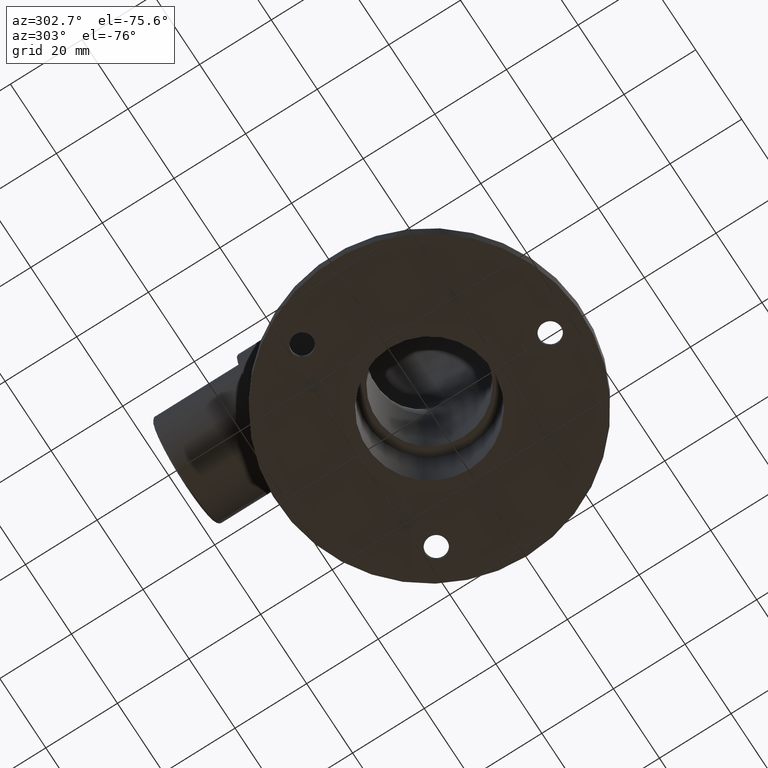
[diagram: clean part render]
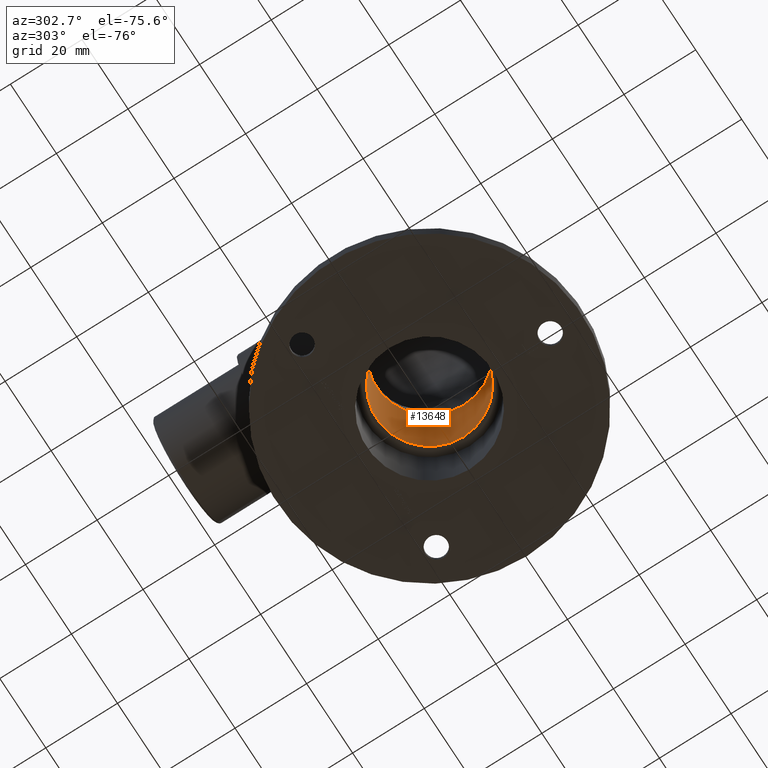
[diagram: same view with one face highlighted and labeled with its STEP entity id]
A machine part, auxiliary view. The second image highlights one B-rep face of the part: STEP entity #13648.
In plain terms, the highlighted cylindrical surface (bore or boss wall) has radius 14.85 mm, axis along (0, 0, -1).
Its self-contained STEP definition (entity closure, byte-faithful):
#2029 = CARTESIAN_POINT ( 'NONE',  ( 0.000000000000000000, 0.000000000000000000, 51.80000000000001137 ) ) ;
#2169 = VERTEX_POINT ( 'NONE', #14480 ) ;
#2899 = EDGE_CURVE ( 'NONE', #2169, #2169, #10044, .T. ) ;
#3182 = DIRECTION ( 'NONE',  ( -1.000000000000000000, 0.000000000000000000, 0.000000000000000000 ) ) ;
#3306 = AXIS2_PLACEMENT_3D ( 'NONE', #2029, #16500, #3182 ) ;
#4061 = EDGE_CURVE ( 'NONE', #6518, #6518, #13666, .T. ) ;
#4303 = CARTESIAN_POINT ( 'NONE',  ( 0.000000000000000000, 0.000000000000000000, 22.00000000000000000 ) ) ;
#6486 = CARTESIAN_POINT ( 'NONE',  ( 0.000000000000000000, -1.211074029191261298E-14, 51.80000000000001137 ) ) ;
#6518 = VERTEX_POINT ( 'NONE', #6829 ) ;
#6700 = DIRECTION ( 'NONE',  ( -0.000000000000000000, -0.000000000000000000, -1.000000000000000000 ) ) ;
#6801 = AXIS2_PLACEMENT_3D ( 'NONE', #6486, #6700, #7726 ) ;
#6829 = CARTESIAN_POINT ( 'NONE',  ( 14.85000000000000142, -1.211074029191261298E-14, 51.80000000000001137 ) ) ;
#6940 = DIRECTION ( 'NONE',  ( -1.000000000000000000, 0.000000000000000000, 0.000000000000000000 ) ) ;
#7726 = DIRECTION ( 'NONE',  ( 1.000000000000000000, 0.000000000000000000, 0.000000000000000000 ) ) ;
#10044 = CIRCLE ( 'NONE', #12042, 14.85000000000000142 ) ;
#11072 = EDGE_LOOP ( 'NONE', ( #11328 ) ) ;
#11328 = ORIENTED_EDGE ( 'NONE', *, *, #4061, .F. ) ;
#11516 = FACE_OUTER_BOUND ( 'NONE', #11729, .T. ) ;
#11729 = EDGE_LOOP ( 'NONE', ( #13331 ) ) ;
#12042 = AXIS2_PLACEMENT_3D ( 'NONE', #4303, #13420, #6940 ) ;
#13331 = ORIENTED_EDGE ( 'NONE', *, *, #2899, .T. ) ;
#13420 = DIRECTION ( 'NONE',  ( 0.000000000000000000, 0.000000000000000000, -1.000000000000000000 ) ) ;
#13648 = ADVANCED_FACE ( 'NONE', ( #15754, #11516 ), #14531, .F. ) ;
#13666 = CIRCLE ( 'NONE', #6801, 14.85000000000000142 ) ;
#14480 = CARTESIAN_POINT ( 'NONE',  ( -14.85000000000000142, 0.000000000000000000, 22.00000000000000000 ) ) ;
#14531 = CYLINDRICAL_SURFACE ( 'NONE', #3306, 14.85000000000000142 ) ;
#15754 = FACE_OUTER_BOUND ( 'NONE', #11072, .T. ) ;
#16500 = DIRECTION ( 'NONE',  ( 0.000000000000000000, 0.000000000000000000, -1.000000000000000000 ) ) ;